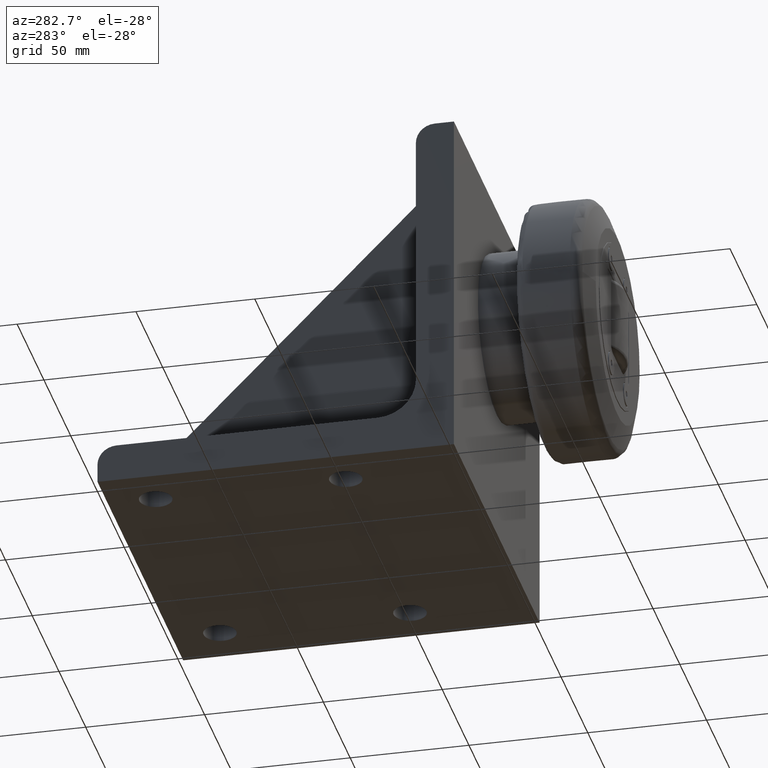
[diagram: clean part render]
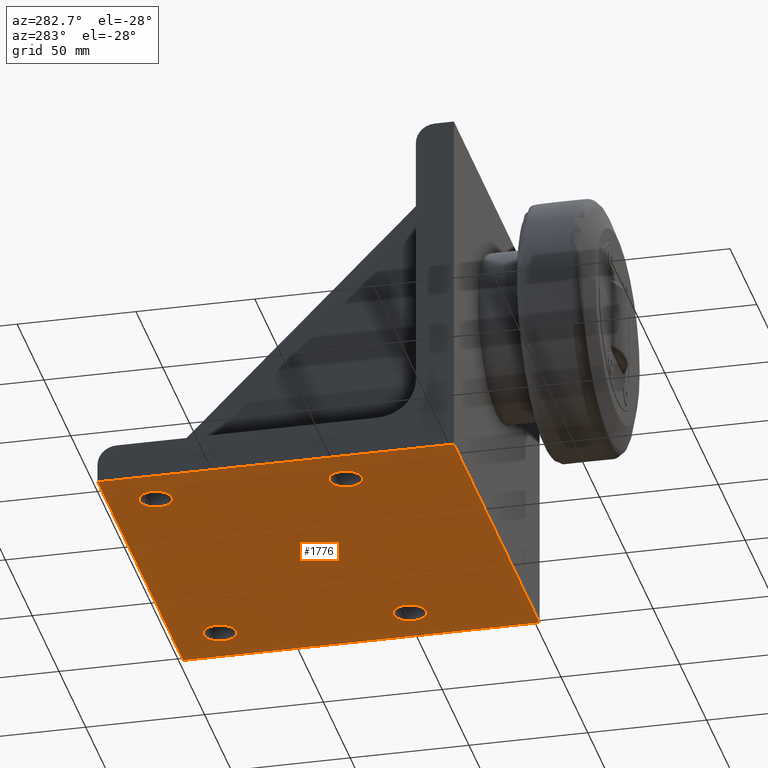
[diagram: same view with one face highlighted and labeled with its STEP entity id]
A machine part, auxiliary view. The second image highlights one B-rep face of the part: STEP entity #1776.
In plain terms, the highlighted planar face has unit normal (0, 0, -1).
Its self-contained STEP definition (entity closure, byte-faithful):
#54=FACE_BOUND('',#349,.T.);
#55=FACE_BOUND('',#350,.T.);
#56=FACE_BOUND('',#351,.T.);
#57=FACE_BOUND('',#352,.T.);
#103=CIRCLE('',#1921,6.9175);
#104=CIRCLE('',#1922,6.9175);
#106=CIRCLE('',#1925,6.9175);
#107=CIRCLE('',#1926,6.9175);
#109=CIRCLE('',#1929,6.9175);
#110=CIRCLE('',#1930,6.9175);
#112=CIRCLE('',#1933,6.9175);
#113=CIRCLE('',#1934,6.9175);
#231=FACE_OUTER_BOUND('',#348,.T.);
#348=EDGE_LOOP('',(#1481,#1482,#1483,#1484));
#349=EDGE_LOOP('',(#1485,#1486));
#350=EDGE_LOOP('',(#1487,#1488));
#351=EDGE_LOOP('',(#1489,#1490));
#352=EDGE_LOOP('',(#1491,#1492));
#470=LINE('',#2797,#635);
#520=LINE('',#2929,#685);
#524=LINE('',#2939,#689);
#527=LINE('',#2947,#692);
#635=VECTOR('',#2250,10.);
#685=VECTOR('',#2372,10.);
#689=VECTOR('',#2382,10.);
#692=VECTOR('',#2393,10.);
#800=VERTEX_POINT('',#2790);
#803=VERTEX_POINT('',#2795);
#832=VERTEX_POINT('',#2880);
#833=VERTEX_POINT('',#2881);
#835=VERTEX_POINT('',#2888);
#836=VERTEX_POINT('',#2889);
#838=VERTEX_POINT('',#2896);
#839=VERTEX_POINT('',#2897);
#841=VERTEX_POINT('',#2904);
#842=VERTEX_POINT('',#2905);
#849=VERTEX_POINT('',#2927);
#852=VERTEX_POINT('',#2937);
#1010=EDGE_CURVE('',#803,#800,#470,.T.);
#1051=EDGE_CURVE('',#832,#833,#103,.T.);
#1052=EDGE_CURVE('',#833,#832,#104,.T.);
#1055=EDGE_CURVE('',#835,#836,#106,.T.);
#1056=EDGE_CURVE('',#836,#835,#107,.T.);
#1059=EDGE_CURVE('',#838,#839,#109,.T.);
#1060=EDGE_CURVE('',#839,#838,#110,.T.);
#1063=EDGE_CURVE('',#841,#842,#112,.T.);
#1064=EDGE_CURVE('',#842,#841,#113,.T.);
#1076=EDGE_CURVE('',#849,#803,#520,.T.);
#1081=EDGE_CURVE('',#849,#852,#524,.T.);
#1085=EDGE_CURVE('',#852,#800,#527,.T.);
#1481=ORIENTED_EDGE('',*,*,#1085,.T.);
#1482=ORIENTED_EDGE('',*,*,#1010,.F.);
#1483=ORIENTED_EDGE('',*,*,#1076,.F.);
#1484=ORIENTED_EDGE('',*,*,#1081,.T.);
#1485=ORIENTED_EDGE('',*,*,#1051,.T.);
#1486=ORIENTED_EDGE('',*,*,#1052,.T.);
#1487=ORIENTED_EDGE('',*,*,#1055,.T.);
#1488=ORIENTED_EDGE('',*,*,#1056,.T.);
#1489=ORIENTED_EDGE('',*,*,#1059,.T.);
#1490=ORIENTED_EDGE('',*,*,#1060,.T.);
#1491=ORIENTED_EDGE('',*,*,#1063,.T.);
#1492=ORIENTED_EDGE('',*,*,#1064,.T.);
#1691=PLANE('',#1949);
#1776=ADVANCED_FACE('',(#231,#54,#55,#56,#57),#1691,.T.);
#1921=AXIS2_PLACEMENT_3D('',#2882,#2319,#2320);
#1922=AXIS2_PLACEMENT_3D('',#2883,#2321,#2322);
#1925=AXIS2_PLACEMENT_3D('',#2890,#2328,#2329);
#1926=AXIS2_PLACEMENT_3D('',#2891,#2330,#2331);
#1929=AXIS2_PLACEMENT_3D('',#2898,#2337,#2338);
#1930=AXIS2_PLACEMENT_3D('',#2899,#2339,#2340);
#1933=AXIS2_PLACEMENT_3D('',#2906,#2346,#2347);
#1934=AXIS2_PLACEMENT_3D('',#2907,#2348,#2349);
#1949=AXIS2_PLACEMENT_3D('',#2946,#2391,#2392);
#2250=DIRECTION('',(1.,0.,0.));
#2319=DIRECTION('center_axis',(0.,-1.18768487285537E-16,1.));
#2320=DIRECTION('ref_axis',(-1.,0.,0.));
#2321=DIRECTION('center_axis',(0.,-1.18768487285537E-16,1.));
#2322=DIRECTION('ref_axis',(-1.,0.,0.));
#2328=DIRECTION('center_axis',(0.,-1.18768487285537E-16,1.));
#2329=DIRECTION('ref_axis',(-1.,0.,0.));
#2330=DIRECTION('center_axis',(0.,-1.18768487285537E-16,1.));
#2331=DIRECTION('ref_axis',(-1.,0.,0.));
#2337=DIRECTION('center_axis',(0.,-1.18768487285537E-16,1.));
#2338=DIRECTION('ref_axis',(-1.,0.,0.));
#2339=DIRECTION('center_axis',(0.,-1.18768487285537E-16,1.));
#2340=DIRECTION('ref_axis',(-1.,0.,0.));
#2346=DIRECTION('center_axis',(0.,-1.18768487285537E-16,1.));
#2347=DIRECTION('ref_axis',(-1.,0.,0.));
#2348=DIRECTION('center_axis',(0.,-1.18768487285537E-16,1.));
#2349=DIRECTION('ref_axis',(-1.,0.,0.));
#2372=DIRECTION('',(0.,-1.,-1.18768487285537E-16));
#2382=DIRECTION('',(1.,0.,0.));
#2391=DIRECTION('center_axis',(0.,1.18768487285537E-16,-1.));
#2392=DIRECTION('ref_axis',(-1.,0.,0.));
#2393=DIRECTION('',(0.,-1.,-1.18768487285537E-16));
#2790=CARTESIAN_POINT('',(160.,2.22044604925031E-15,-2.27215074807839E-15));
#2795=CARTESIAN_POINT('',(0.,2.22044604925031E-15,-2.27215074807839E-15));
#2797=CARTESIAN_POINT('',(0.,2.22044604925031E-15,-2.27215074807839E-15));
#2880=CARTESIAN_POINT('',(13.0825,50.,3.66627361619847E-15));
#2881=CARTESIAN_POINT('',(26.9175,50.,-3.5527136788005E-14));
#2882=CARTESIAN_POINT('Origin',(20.,50.,0.));
#2883=CARTESIAN_POINT('Origin',(20.,50.,0.));
#2888=CARTESIAN_POINT('',(133.0825,130.,1.31677525990414E-14));
#2889=CARTESIAN_POINT('',(146.9175,130.,-3.5527136788005E-14));
#2890=CARTESIAN_POINT('Origin',(140.,130.,0.));
#2891=CARTESIAN_POINT('Origin',(140.,130.,0.));
#2896=CARTESIAN_POINT('',(13.0825,130.,1.31677525990414E-14));
#2897=CARTESIAN_POINT('',(26.9175,130.,-3.5527136788005E-14));
#2898=CARTESIAN_POINT('Origin',(20.,130.,0.));
#2899=CARTESIAN_POINT('Origin',(20.,130.,0.));
#2904=CARTESIAN_POINT('',(133.0825,50.,3.66627361619847E-15));
#2905=CARTESIAN_POINT('',(146.9175,50.,-3.5527136788005E-14));
#2906=CARTESIAN_POINT('Origin',(140.,50.,0.));
#2907=CARTESIAN_POINT('Origin',(140.,50.,0.));
#2927=CARTESIAN_POINT('',(0.,150.,1.55431223447522E-14));
#2929=CARTESIAN_POINT('',(0.,150.,1.55431223447522E-14));
#2937=CARTESIAN_POINT('',(160.,150.,1.55431223447522E-14));
#2939=CARTESIAN_POINT('',(0.,150.,1.55431223447522E-14));
#2946=CARTESIAN_POINT('Origin',(0.,150.,1.55431223447522E-14));
#2947=CARTESIAN_POINT('',(160.,150.,1.55431223447522E-14));